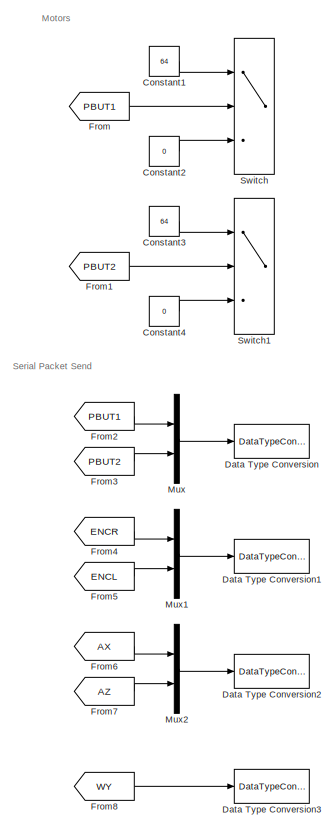
[diagram: root canvas - part 1/3, center side, full height]
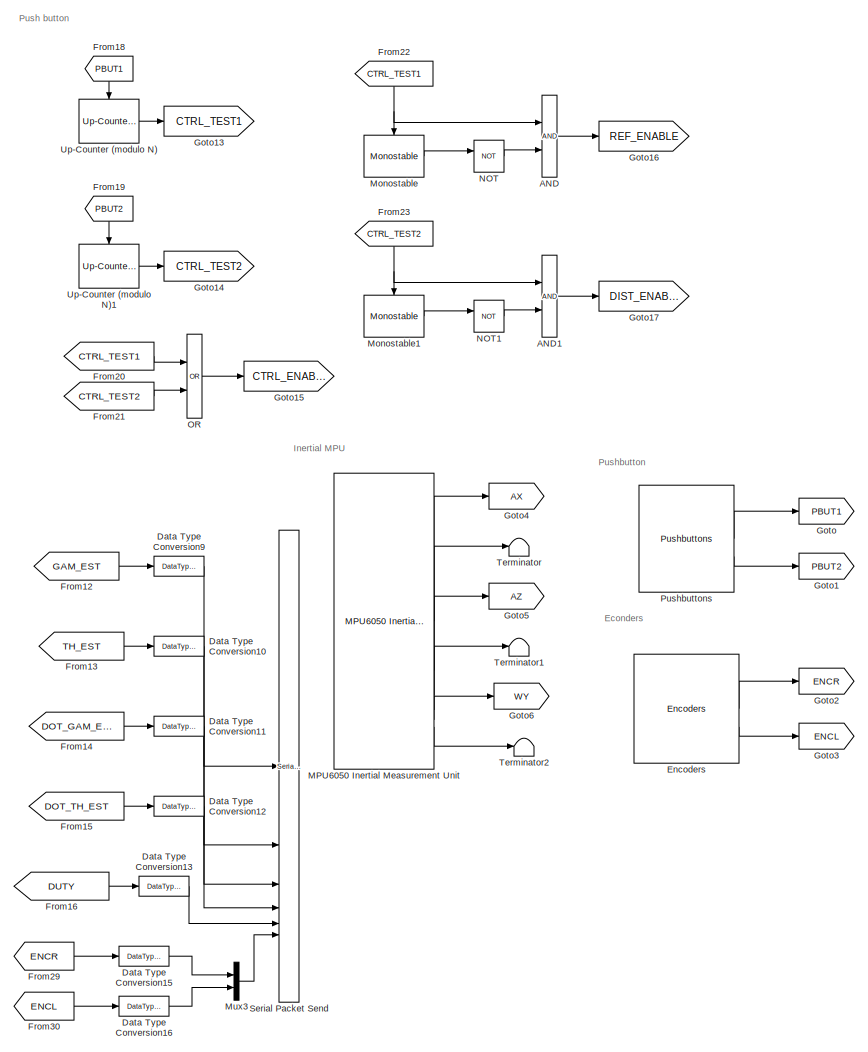
[diagram: root canvas - part 2/3, right side, full height]
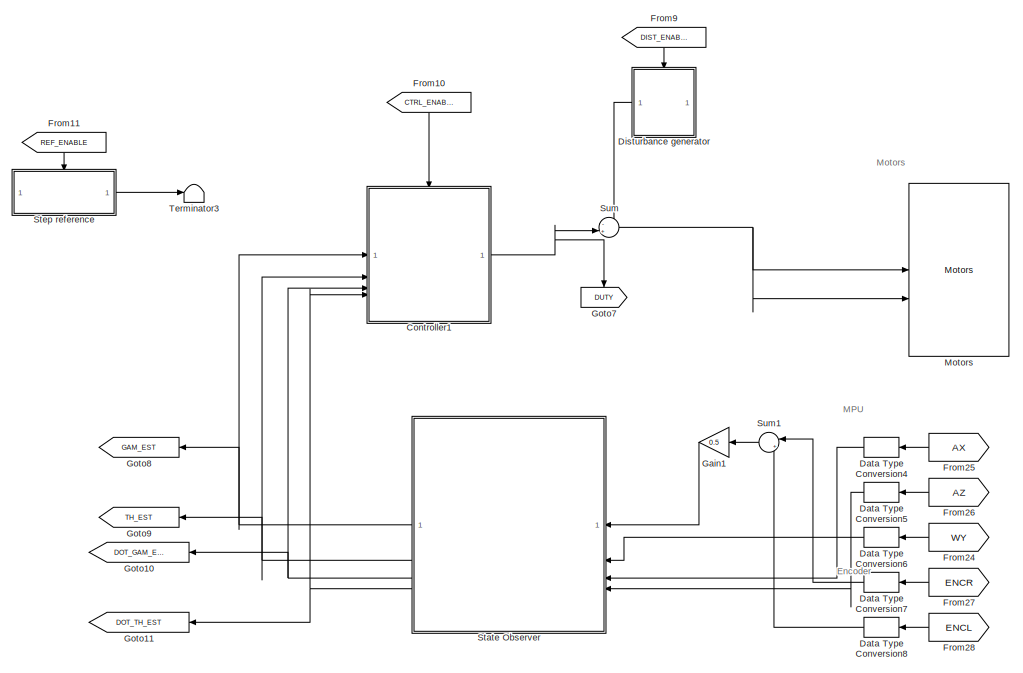
[diagram: root canvas - part 3/3, middle left region]
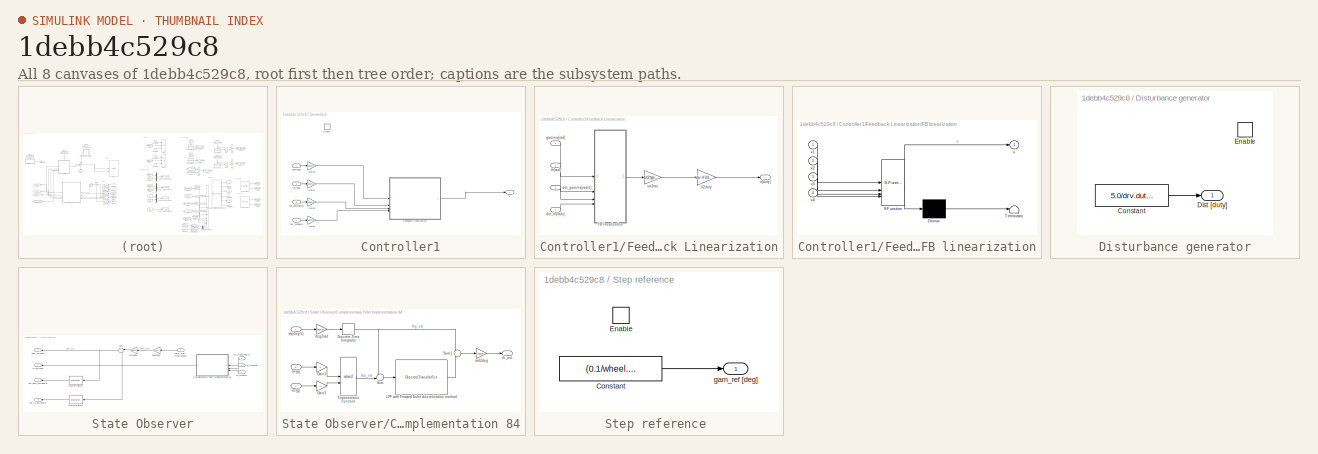
[diagram: thumbnail index - all 8 canvases of the model, root first then tree order]
MODEL slx_1debb4c529c8
KIND model
CONFIG AbsTol = auto
CONFIG EnableMultiTasking = on
CONFIG FixedStep = 0.01
CONFIG MaxStep = auto
CONFIG MinStep = auto
CONFIG RelTol = 1e-3
CONFIG SampleTimeConstraint = Unconstrained
CONFIG SolverName = FixedStepDiscrete
CONFIG StartTime = 0.0
CONFIG StopTime = 60
BLOCK [Logic] AND
  AllPortsSameDT = off
  IconShape = distinctive
  OutDataTypeStr = boolean
BLOCK [Logic] AND1
  AllPortsSameDT = off
  IconShape = distinctive
  OutDataTypeStr = boolean
BLOCK [Constant] Constant1
  Commented = on
  Value = 64
BLOCK [Constant] Constant2
  Commented = on
  Value = 0
BLOCK [Constant] Constant3
  Commented = on
  Value = 64
BLOCK [Constant] Constant4
  Commented = on
  Value = 0
BLOCK [SubSystem] Controller1
BLOCK [EnablePort] Controller1/Enable
BLOCK [SubSystem] Controller1/Feedback Linearization
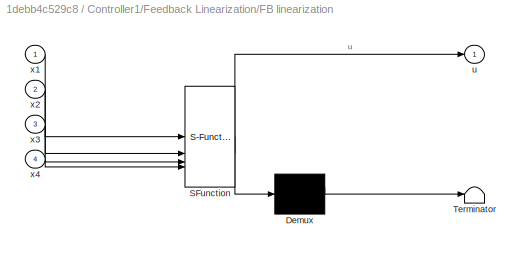
BLOCK [SubSystem] Controller1/Feedback Linearization/FB linearization
  ErrorFcn = Stateflow.Translate.translate
  LibrarySourceBlock = simulink/User-Defined\nFunctions/MATLAB Function
  PermitHierarchicalResolution = ExplicitOnly
  SFBlockType = MATLAB Function
  TreatAsAtomicUnit = on
BLOCK [Demux] Controller1/Feedback Linearization/FB linearization/ Demux 
  Outputs = 1
BLOCK [S-Function] Controller1/Feedback Linearization/FB linearization/ SFunction 
  EnableBusSupport = on
  FunctionName = sf_sfun
  Parameters = num1
  PortCounts = [4 2]
  SFcnIsStateOwnerBlock = off
  SFunctionDeploymentMode = off
  Tag = Stateflow S-Function 2
BLOCK [Terminator] Controller1/Feedback Linearization/FB linearization/ Terminator 
BLOCK [Outport] Controller1/Feedback Linearization/FB linearization/u
BLOCK [Inport] Controller1/Feedback Linearization/FB linearization/x1
BLOCK [Inport] Controller1/Feedback Linearization/FB linearization/x2
  Port = 2
BLOCK [Inport] Controller1/Feedback Linearization/FB linearization/x3
  Port = 3
BLOCK [Inport] Controller1/Feedback Linearization/FB linearization/x4
  Port = 4
BLOCK [Gain] Controller1/Feedback Linearization/V2duty
  Gain = drv.V2duty
BLOCK [Inport] Controller1/Feedback Linearization/dot_gamma[rad//s]
  Port = 3
BLOCK [Inport] Controller1/Feedback Linearization/dot_th[rads]
  Port = 4
BLOCK [Inport] Controller1/Feedback Linearization/gamma[rad]
BLOCK [Inport] Controller1/Feedback Linearization/th[rad]
  Port = 2
BLOCK [Outport] Controller1/Feedback Linearization/u[duty]
BLOCK [Gain] Controller1/Feedback Linearization/ua2tau
  Gain = 1/(2*gbox.N*mot.Kt/mot.R)
BLOCK [Gain] Controller1/Gain3
  Gain = deg2rad
BLOCK [Gain] Controller1/Gain4
  Gain = deg2rad
BLOCK [Gain] Controller1/Gain5
  Gain = deg2rad
BLOCK [Gain] Controller1/Gain6
  Gain = deg2rad
BLOCK [Inport] Controller1/dot_gam[deg//s]
  Port = 3
BLOCK [Inport] Controller1/dot_th[deg//s]
  Port = 4
BLOCK [Inport] Controller1/gam[deg]
BLOCK [Inport] Controller1/tht[deg]
  Port = 2
BLOCK [Outport] Controller1/u
  VectorParamsAs1DForOutWhenUnconnected = off
BLOCK [DataTypeConversion] Data Type Conversion
  Commented = on
  OutDataTypeStr = uint8
  RndMeth = Floor
  SaturateOnIntegerOverflow = off
BLOCK [DataTypeConversion] Data Type Conversion1
  Commented = on
  OutDataTypeStr = int32
  RndMeth = Floor
  SaturateOnIntegerOverflow = off
BLOCK [DataTypeConversion] Data Type Conversion10
  OutDataTypeStr = single
  RndMeth = Floor
  SaturateOnIntegerOverflow = off
BLOCK [DataTypeConversion] Data Type Conversion11
  OutDataTypeStr = single
  RndMeth = Floor
  SaturateOnIntegerOverflow = off
BLOCK [DataTypeConversion] Data Type Conversion12
  OutDataTypeStr = single
  RndMeth = Floor
  SaturateOnIntegerOverflow = off
BLOCK [DataTypeConversion] Data Type Conversion13
  OutDataTypeStr = single
  RndMeth = Floor
  SaturateOnIntegerOverflow = off
BLOCK [DataTypeConversion] Data Type Conversion15
  OutDataTypeStr = single
  RndMeth = Floor
  SaturateOnIntegerOverflow = off
BLOCK [DataTypeConversion] Data Type Conversion16
  OutDataTypeStr = single
  RndMeth = Floor
  SaturateOnIntegerOverflow = off
BLOCK [DataTypeConversion] Data Type Conversion2
  Commented = on
  OutDataTypeStr = single
  RndMeth = Floor
  SaturateOnIntegerOverflow = off
BLOCK [DataTypeConversion] Data Type Conversion3
  Commented = on
  OutDataTypeStr = single
  RndMeth = Floor
  SaturateOnIntegerOverflow = off
BLOCK [DataTypeConversion] Data Type Conversion4
  NameLocation = top
  OutDataTypeStr = double
  RndMeth = Floor
  SaturateOnIntegerOverflow = off
BLOCK [DataTypeConversion] Data Type Conversion5
  NameLocation = top
  OutDataTypeStr = double
  RndMeth = Floor
  SaturateOnIntegerOverflow = off
BLOCK [DataTypeConversion] Data Type Conversion6
  NameLocation = top
  OutDataTypeStr = double
  RndMeth = Floor
  SaturateOnIntegerOverflow = off
BLOCK [DataTypeConversion] Data Type Conversion7
  NameLocation = top
  OutDataTypeStr = double
  RndMeth = Floor
  SaturateOnIntegerOverflow = off
BLOCK [DataTypeConversion] Data Type Conversion8
  NameLocation = top
  OutDataTypeStr = double
  RndMeth = Floor
  SaturateOnIntegerOverflow = off
BLOCK [DataTypeConversion] Data Type Conversion9
  OutDataTypeStr = single
  RndMeth = Floor
  SaturateOnIntegerOverflow = off
BLOCK [SubSystem] Disturbance generator
BLOCK [Constant] Disturbance generator/Constant
  Value = 5.0/drv.duty2V
BLOCK [Outport] Disturbance generator/Dist [duty]
  InitialOutput = 0
BLOCK [EnablePort] Disturbance generator/Enable
BLOCK [Reference] Encoders  REF=BalRobTbx_baselib/Inputs/Encoders
  SourceBlock = BalRobTbx_baselib/Inputs/Encoders
  SourceType = Encoders
BLOCK [From] From
  Commented = on
  GotoTag = PBUT1
BLOCK [From] From1
  Commented = on
  GotoTag = PBUT2
BLOCK [From] From10
  GotoTag = CTRL_ENABLE
  NameLocation = left
BLOCK [From] From11
  GotoTag = REF_ENABLE
  NameLocation = left
BLOCK [From] From12
  GotoTag = GAM_EST
BLOCK [From] From13
  GotoTag = TH_EST
BLOCK [From] From14
  GotoTag = DOT_GAM_EST
BLOCK [From] From15
  GotoTag = DOT_TH_EST
BLOCK [From] From16
  GotoTag = DUTY
BLOCK [From] From18
  GotoTag = PBUT1
  NameLocation = left
BLOCK [From] From19
  GotoTag = PBUT2
  NameLocation = left
BLOCK [From] From2
  Commented = on
  GotoTag = PBUT1
BLOCK [From] From20
  GotoTag = CTRL_TEST1
BLOCK [From] From21
  GotoTag = CTRL_TEST2
BLOCK [From] From22
  GotoTag = CTRL_TEST1
  NameLocation = left
BLOCK [From] From23
  GotoTag = CTRL_TEST2
  NameLocation = left
BLOCK [From] From24
  GotoTag = WY
  NameLocation = top
BLOCK [From] From25
  GotoTag = AX
  NameLocation = top
BLOCK [From] From26
  GotoTag = AZ
  NameLocation = top
BLOCK [From] From27
  GotoTag = ENCR
  NameLocation = top
BLOCK [From] From28
  GotoTag = ENCL
  NameLocation = top
BLOCK [From] From29
  GotoTag = ENCR
BLOCK [From] From3
  Commented = on
  GotoTag = PBUT2
BLOCK [From] From30
  GotoTag = ENCL
BLOCK [From] From4
  Commented = on
  GotoTag = ENCR
BLOCK [From] From5
  Commented = on
  GotoTag = ENCL
BLOCK [From] From6
  Commented = on
  GotoTag = AX
BLOCK [From] From7
  Commented = on
  GotoTag = AZ
BLOCK [From] From8
  Commented = on
  GotoTag = WY
BLOCK [From] From9
  GotoTag = DIST_ENABLE
  NameLocation = left
BLOCK [Gain] Gain1
  Gain = 0.5
  NameLocation = top
BLOCK [Goto] Goto
  GotoTag = PBUT1
BLOCK [Goto] Goto1
  GotoTag = PBUT2
BLOCK [Goto] Goto10
  GotoTag = DOT_GAM_EST
  NameLocation = top
BLOCK [Goto] Goto11
  GotoTag = DOT_TH_EST
  NameLocation = top
BLOCK [Goto] Goto13
  GotoTag = CTRL_TEST1
BLOCK [Goto] Goto14
  GotoTag = CTRL_TEST2
BLOCK [Goto] Goto15
  GotoTag = CTRL_ENABLE
BLOCK [Goto] Goto16
  GotoTag = REF_ENABLE
BLOCK [Goto] Goto17
  GotoTag = DIST_ENABLE
BLOCK [Goto] Goto2
  GotoTag = ENCR
BLOCK [Goto] Goto3
  GotoTag = ENCL
BLOCK [Goto] Goto4
  GotoTag = AX
BLOCK [Goto] Goto5
  GotoTag = AZ
BLOCK [Goto] Goto6
  GotoTag = WY
BLOCK [Goto] Goto7
  GotoTag = DUTY
  NameLocation = left
BLOCK [Goto] Goto8
  GotoTag = GAM_EST
  NameLocation = top
BLOCK [Goto] Goto9
  GotoTag = TH_EST
  NameLocation = top
BLOCK [Reference] MPU6050 Inertial Measurement Unit  REF=BalRobTbx_baselib/Inputs/MPU6050
Inertial Measurement Unit
  SourceBlock = BalRobTbx_baselib/Inputs/MPU6050\nInertial Measurement Unit
  SourceType = MPU6050
BLOCK [Reference] Monostable  REF=BalRobTbx_baselib/Utilities/Monostable
  SourceBlock = BalRobTbx_baselib/Utilities/Monostable
BLOCK [Reference] Monostable1  REF=BalRobTbx_baselib/Utilities/Monostable
  SourceBlock = BalRobTbx_baselib/Utilities/Monostable
BLOCK [Reference] Motors  REF=BalRobTbx_baselib/Outputs/Motors
  SourceBlock = BalRobTbx_baselib/Outputs/Motors
  SourceType = Motors
BLOCK [Mux] Mux
  Commented = on
  DisplayOption = bar
  Inputs = 2
BLOCK [Mux] Mux1
  Commented = on
  DisplayOption = bar
  Inputs = 2
BLOCK [Mux] Mux2
  Commented = on
  DisplayOption = bar
  Inputs = 2
BLOCK [Mux] Mux3
  DisplayOption = bar
  Inputs = 2
BLOCK [Logic] NOT
  AllPortsSameDT = off
  IconShape = distinctive
  Operator = NOT
  OutDataTypeStr = boolean
BLOCK [Logic] NOT1
  AllPortsSameDT = off
  IconShape = distinctive
  Operator = NOT
  OutDataTypeStr = boolean
BLOCK [Logic] OR
  AllPortsSameDT = off
  IconShape = distinctive
  Operator = OR
  OutDataTypeStr = boolean
BLOCK [Reference] Pushbuttons  REF=BalRobTbx_baselib/Inputs/Pushbuttons
  SourceBlock = BalRobTbx_baselib/Inputs/Pushbuttons
  SourceType = Pushbuttons
BLOCK [Reference] Serial Packet Send  REF=BalRobTbx_baselib/Communication/Serial Packet Send
  SourceBlock = BalRobTbx_baselib/Communication/Serial Packet Send
  SourceType = Serial Packet Send
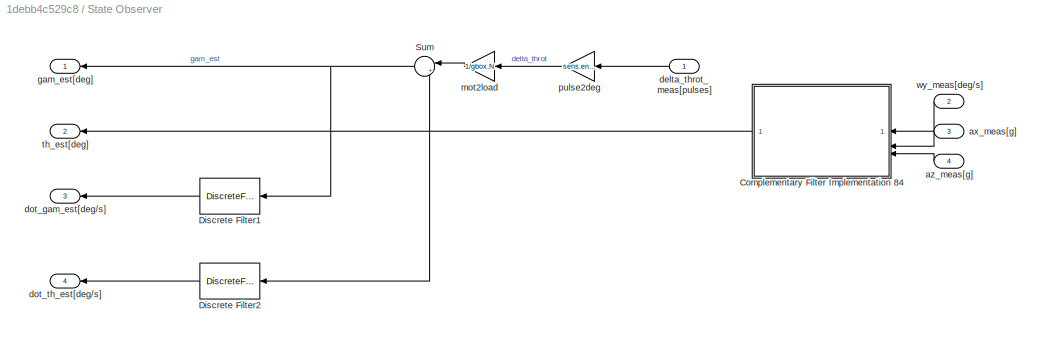
BLOCK [SubSystem] State Observer
  NameLocation = top
BLOCK [SubSystem] State Observer/Complementary Filter Implementation 84
  NameLocation = top
BLOCK [DiscreteIntegrator] State Observer/Complementary Filter Implementation 84/Discrete-Time Integrator
  ICPrevOutput = DiscIntNeverNeededParam
  ICPrevScaledInput = DiscIntNeverNeededParam
  InitialConditionSetting = Auto
  SampleTime = Ts
BLOCK [Gain] State Observer/Complementary Filter Implementation 84/Gain1
BLOCK [Gain] State Observer/Complementary Filter Implementation 84/Gain3
  Gain = -1
BLOCK [DiscreteTransferFcn] State Observer/Complementary Filter Implementation 84/LPF with Forward Euler discretization method
  Denominator = [Tc/(Ts-Tc) 1]
  InputPortMap = u0
  Numerator = [Ts/(Ts-Tc)]
  SampleTime = Ts
BLOCK [Sum] State Observer/Complementary Filter Implementation 84/Sum
  Inputs = -+|
BLOCK [Sum] State Observer/Complementary Filter Implementation 84/Sum1
  Inputs = +|+
BLOCK [Trigonometry] State Observer/Complementary Filter Implementation 84/Trigonometric Function
  Operator = atan2
BLOCK [Inport] State Observer/Complementary Filter Implementation 84/ax[g]
  Port = 2
BLOCK [Inport] State Observer/Complementary Filter Implementation 84/az[g]
  Port = 3
BLOCK [Gain] State Observer/Complementary Filter Implementation 84/deg2rad
  Gain = deg2rad
BLOCK [Gain] State Observer/Complementary Filter Implementation 84/rad2deg
  Gain = rad2deg
BLOCK [Outport] State Observer/Complementary Filter Implementation 84/th_est
  VectorParamsAs1DForOutWhenUnconnected = off
BLOCK [Inport] State Observer/Complementary Filter Implementation 84/wy[deg//s]
BLOCK [DiscreteFilter] State Observer/Discrete Filter1
  Denominator = [3*Ts]
  InputPortMap = u0
  Numerator = [1 0 0 -1]
  SampleTime = Ts
BLOCK [DiscreteFilter] State Observer/Discrete Filter2
  Denominator = [3*Ts]
  InputPortMap = u0
  Numerator = [1 0 0 -1]
  SampleTime = Ts
BLOCK [Sum] State Observer/Sum
  Inputs = |++
  NameLocation = top
BLOCK [Inport] State Observer/ax_meas[g]
  Port = 3
BLOCK [Inport] State Observer/az_meas[g]
  Port = 4
BLOCK [Inport] State Observer/delta_throt_meas[pulses]
  NameLocation = top
BLOCK [Outport] State Observer/dot_gam_est[deg//s]
  Port = 3
  VectorParamsAs1DForOutWhenUnconnected = off
BLOCK [Outport] State Observer/dot_th_est[deg//s]
  Port = 4
  VectorParamsAs1DForOutWhenUnconnected = off
BLOCK [Outport] State Observer/gam_est[deg]
  NameLocation = top
  VectorParamsAs1DForOutWhenUnconnected = off
BLOCK [Gain] State Observer/mot2load
  Gain = 1/gbox.N
  NameLocation = top
BLOCK [Gain] State Observer/pulse2deg
  Gain = sens.enc.pulse2deg
  NameLocation = top
BLOCK [Outport] State Observer/th_est[deg]
  NameLocation = top
  Port = 2
  VectorParamsAs1DForOutWhenUnconnected = off
BLOCK [Inport] State Observer/wy_meas[deg//s]
  Port = 2
BLOCK [SubSystem] Step reference 
BLOCK [Constant] Step reference /Constant
  Value = (0.1/wheel.r)*rad2deg
BLOCK [EnablePort] Step reference /Enable
BLOCK [Outport] Step reference /gam_ref [deg]
BLOCK [Sum] Sum
  Inputs = -+|
BLOCK [Sum] Sum1
  Inputs = |++
  NameLocation = top
BLOCK [Switch] Switch
  Commented = on
  Criteria = u2 > Threshold
  InputSameDT = off
  SaturateOnIntegerOverflow = off
BLOCK [Switch] Switch1
  Commented = on
  Criteria = u2 > Threshold
  InputSameDT = off
  SaturateOnIntegerOverflow = off
BLOCK [Terminator] Terminator
BLOCK [Terminator] Terminator1
BLOCK [Terminator] Terminator2
BLOCK [Terminator] Terminator3
BLOCK [Reference] Up-Counter (modulo N)  REF=BalRobTbx_baselib/Utilities/Up-Counter
(modulo N)
  SourceBlock = BalRobTbx_baselib/Utilities/Up-Counter\n(modulo N)
BLOCK [Reference] Up-Counter (modulo N)1  REF=BalRobTbx_baselib/Utilities/Up-Counter
(modulo N)
  SourceBlock = BalRobTbx_baselib/Utilities/Up-Counter\n(modulo N)
ANNOTATION (root): Econders
ANNOTATION (root): Encoder
ANNOTATION (root): Inertial MPU
ANNOTATION (root): MPU
ANNOTATION (root): Motors
ANNOTATION (root): Push button
ANNOTATION (root): Pushbutton
ANNOTATION (root): Serial Packet Send
LINE AND1:1 -> Goto17:1
LINE AND:1 -> Goto16:1
LINE Constant1:1 -> Switch:1
LINE Constant2:1 -> Switch:3
LINE Constant3:1 -> Switch1:1
LINE Constant4:1 -> Switch1:3
LINE Controller1/Feedback Linearization/FB linearization:1 -> Controller1/Feedback Linearization/ua2tau:1
LINE Controller1/Feedback Linearization/V2duty:1 -> Controller1/Feedback Linearization/u[duty]:1
LINE Controller1/Feedback Linearization/dot_gamma[rad//s]:1 -> Controller1/Feedback Linearization/FB linearization:3
LINE Controller1/Feedback Linearization/dot_th[rads]:1 -> Controller1/Feedback Linearization/FB linearization:4
LINE Controller1/Feedback Linearization/gamma[rad]:1 -> Controller1/Feedback Linearization/FB linearization:1
LINE Controller1/Feedback Linearization/th[rad]:1 -> Controller1/Feedback Linearization/FB linearization:2
LINE Controller1/Feedback Linearization/ua2tau:1 -> Controller1/Feedback Linearization/V2duty:1
LINE Controller1/Feedback Linearization:1 -> Controller1/u:1
LINE Controller1/Gain3:1 -> Controller1/Feedback Linearization:1
LINE Controller1/Gain4:1 -> Controller1/Feedback Linearization:2
LINE Controller1/Gain5:1 -> Controller1/Feedback Linearization:3
LINE Controller1/Gain6:1 -> Controller1/Feedback Linearization:4
LINE Controller1/dot_gam[deg//s]:1 -> Controller1/Gain5:1
LINE Controller1/dot_th[deg//s]:1 -> Controller1/Gain6:1
LINE Controller1/gam[deg]:1 -> Controller1/Gain3:1
LINE Controller1/tht[deg]:1 -> Controller1/Gain4:1
NET Controller1:1 -> Goto7:1, Sum:2
LINE Data Type Conversion10:1 -> Serial Packet Send:2
LINE Data Type Conversion11:1 -> Serial Packet Send:3
LINE Data Type Conversion12:1 -> Serial Packet Send:4
LINE Data Type Conversion13:1 -> Serial Packet Send:5
LINE Data Type Conversion15:1 -> Mux3:1
LINE Data Type Conversion16:1 -> Mux3:2
LINE Data Type Conversion4:1 -> State Observer:3
LINE Data Type Conversion5:1 -> State Observer:4
LINE Data Type Conversion6:1 -> State Observer:2
LINE Data Type Conversion7:1 -> Sum1:1
LINE Data Type Conversion8:1 -> Sum1:2
LINE Data Type Conversion9:1 -> Serial Packet Send:1
LINE Disturbance generator/Constant:1 -> Disturbance generator/Dist [duty]:1
LINE Disturbance generator:1 -> Sum:1
LINE Encoders:1 -> Goto2:1
LINE Encoders:2 -> Goto3:1
LINE From10:1 -> Controller1:enable
LINE From11:1 -> Step reference :enable
LINE From12:1 -> Data Type Conversion9:1
LINE From13:1 -> Data Type Conversion10:1
LINE From14:1 -> Data Type Conversion11:1
LINE From15:1 -> Data Type Conversion12:1
LINE From16:1 -> Data Type Conversion13:1
LINE From18:1 -> Up-Counter (modulo N):trigger
LINE From19:1 -> Up-Counter (modulo N)1:trigger
LINE From1:1 -> Switch1:2
LINE From20:1 -> OR:1
LINE From21:1 -> OR:2
NET From22:1 -> AND:1, Monostable:enable
NET From23:1 -> AND1:1, Monostable1:enable
LINE From24:1 -> Data Type Conversion6:1
LINE From25:1 -> Data Type Conversion4:1
LINE From26:1 -> Data Type Conversion5:1
LINE From27:1 -> Data Type Conversion7:1
LINE From28:1 -> Data Type Conversion8:1
LINE From29:1 -> Data Type Conversion15:1
LINE From2:1 -> Mux:1
LINE From30:1 -> Data Type Conversion16:1
LINE From3:1 -> Mux:2
LINE From4:1 -> Mux1:1
LINE From5:1 -> Mux1:2
LINE From6:1 -> Mux2:1
LINE From7:1 -> Mux2:2
LINE From8:1 -> Data Type Conversion3:1
LINE From9:1 -> Disturbance generator:enable
LINE From:1 -> Switch:2
LINE Gain1:1 -> State Observer:1
LINE MPU6050 Inertial Measurement Unit:1 -> Goto4:1
LINE MPU6050 Inertial Measurement Unit:2 -> Terminator:1
LINE MPU6050 Inertial Measurement Unit:3 -> Goto5:1
LINE MPU6050 Inertial Measurement Unit:4 -> Terminator1:1
LINE MPU6050 Inertial Measurement Unit:5 -> Goto6:1
LINE MPU6050 Inertial Measurement Unit:6 -> Terminator2:1
LINE Monostable1:1 -> NOT1:1
LINE Monostable:1 -> NOT:1
LINE Mux1:1 -> Data Type Conversion1:1
LINE Mux2:1 -> Data Type Conversion2:1
LINE Mux3:1 -> Serial Packet Send:6
LINE Mux:1 -> Data Type Conversion:1
LINE NOT1:1 -> AND1:2
LINE NOT:1 -> AND:2
LINE OR:1 -> Goto15:1
LINE Pushbuttons:1 -> Goto:1
LINE Pushbuttons:2 -> Goto1:1
NET State Observer/Complementary Filter Implementation 84/Discrete-Time Integrator:1 -> State Observer/Complementary Filter Implementation 84/Sum1:1, State Observer/Complementary Filter Implementation 84/Sum:1
LINE State Observer/Complementary Filter Implementation 84/Gain1:1 -> State Observer/Complementary Filter Implementation 84/Trigonometric Function:1
LINE State Observer/Complementary Filter Implementation 84/Gain3:1 -> State Observer/Complementary Filter Implementation 84/Trigonometric Function:2
LINE State Observer/Complementary Filter Implementation 84/LPF with Forward Euler discretization method:1 -> State Observer/Complementary Filter Implementation 84/Sum1:2
LINE State Observer/Complementary Filter Implementation 84/Sum1:1 -> State Observer/Complementary Filter Implementation 84/rad2deg:1
LINE State Observer/Complementary Filter Implementation 84/Sum:1 -> State Observer/Complementary Filter Implementation 84/LPF with Forward Euler discretization method:1
LINE State Observer/Complementary Filter Implementation 84/Trigonometric Function:1 -> State Observer/Complementary Filter Implementation 84/Sum:2
LINE State Observer/Complementary Filter Implementation 84/ax[g]:1 -> State Observer/Complementary Filter Implementation 84/Gain1:1
LINE State Observer/Complementary Filter Implementation 84/az[g]:1 -> State Observer/Complementary Filter Implementation 84/Gain3:1
LINE State Observer/Complementary Filter Implementation 84/deg2rad:1 -> State Observer/Complementary Filter Implementation 84/Discrete-Time Integrator:1
LINE State Observer/Complementary Filter Implementation 84/rad2deg:1 -> State Observer/Complementary Filter Implementation 84/th_est:1
LINE State Observer/Complementary Filter Implementation 84/wy[deg//s]:1 -> State Observer/Complementary Filter Implementation 84/deg2rad:1
NET State Observer/Complementary Filter Implementation 84:1 -> State Observer/Discrete Filter2:1, State Observer/Sum:2, State Observer/th_est[deg]:1
LINE State Observer/Discrete Filter1:1 -> State Observer/dot_gam_est[deg//s]:1
LINE State Observer/Discrete Filter2:1 -> State Observer/dot_th_est[deg//s]:1
NET State Observer/Sum:1 -> State Observer/Discrete Filter1:1, State Observer/gam_est[deg]:1
LINE State Observer/ax_meas[g]:1 -> State Observer/Complementary Filter Implementation 84:2
LINE State Observer/az_meas[g]:1 -> State Observer/Complementary Filter Implementation 84:3
LINE State Observer/delta_throt_meas[pulses]:1 -> State Observer/pulse2deg:1
LINE State Observer/mot2load:1 -> State Observer/Sum:1
LINE State Observer/pulse2deg:1 -> State Observer/mot2load:1
LINE State Observer/wy_meas[deg//s]:1 -> State Observer/Complementary Filter Implementation 84:1
NET State Observer:1 -> Controller1:1, Goto8:1
NET State Observer:2 -> Controller1:2, Goto9:1
NET State Observer:3 -> Controller1:3, Goto10:1
NET State Observer:4 -> Controller1:4, Goto11:1
LINE Step reference /Constant:1 -> Step reference /gam_ref [deg]:1
LINE Step reference :1 -> Terminator3:1
LINE Sum1:1 -> Gain1:1
NET Sum:1 -> Motors:1, Motors:2
LINE Up-Counter (modulo N)1:1 -> Goto14:1
LINE Up-Counter (modulo N):1 -> Goto13:1
note: NET lines group one-source signal fan-out (src -> all destinations, sorted); 1:1 wires keep LINE
CHART Controller1/Feedback Linearization/FB linearization states=1 transitions=1
  STATE_LABEL 'eML_blk_kernel()'
  STATE_LABEL 'SCRIPT:\nfunction u   = fcn(x1, x2, x3 ,x4, num1)\n\nf=[x3;\n    x4;\n    -(num1.g2*num1.m12*sin(x2) - num1.f11*num1.m22*x3 + num1.f21*num1.m12*x3 + num1.f22*num1.m12*x4 - num1.f21*num1.m22*x4 + num1.f21*num1.k*x3*cos(x2) + num1.f22*num1.k*x4*cos(x2) - num1.c12*num1.m22*x4^2*sin(x2) + num1.g2*num1.k*cos(x2)*sin(x2))/(num1.k^2*cos(x2)^2 + 2*num1.k*num1.m12*cos(x2) + num1.m12^2 - num1.m11*num1.m22);\n    ...<+817ch>'
CHART  states=0 transitions=0
